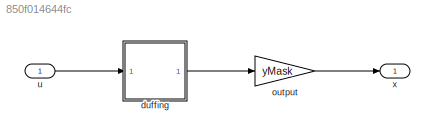
MODEL slx_850f014644fc
KIND model
CONFIG AbsTol = auto
CONFIG EnableMultiTasking = off
CONFIG FixedStep = dt
CONFIG MaxStep = .1
CONFIG MinStep = auto
CONFIG RelTol = 1e-3
CONFIG SampleTimeConstraint = Unconstrained
CONFIG Solver = FixedStepAuto
CONFIG SolverName = FixedStepAuto
CONFIG StartTime = 0.0
CONFIG StopTime = t_end
BLOCK [SubSystem] duffing
  Ports = [1, 1]
  ReferencedSubsystem = duffing
  RequestExecContextInheritance = off
BLOCK [Gain] output
  Gain = yMask
  Multiplication = Matrix(K*u)
  OutDataTypeStr = Inherit: Inherit via internal rule
  ParamDataTypeStr = Inherit: Inherit via internal rule
  SaturateOnIntegerOverflow = off
BLOCK [Inport] u
  IconDisplay = Port number
BLOCK [Outport] x
  IconDisplay = Port number
LINE duffing:1 -> output:1
LINE output:1 -> x:1
LINE u:1 -> duffing:1
